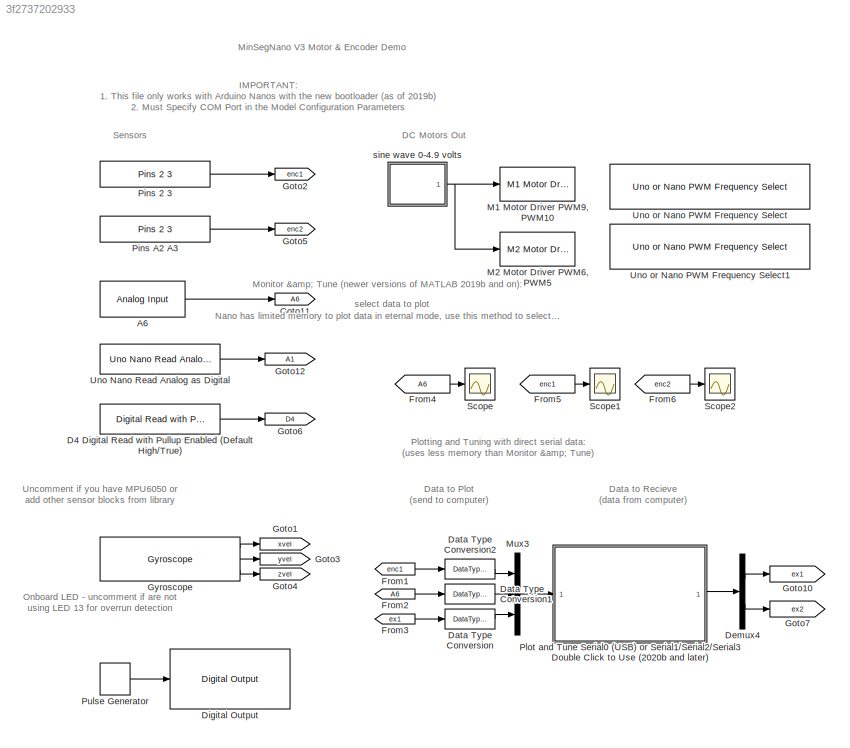
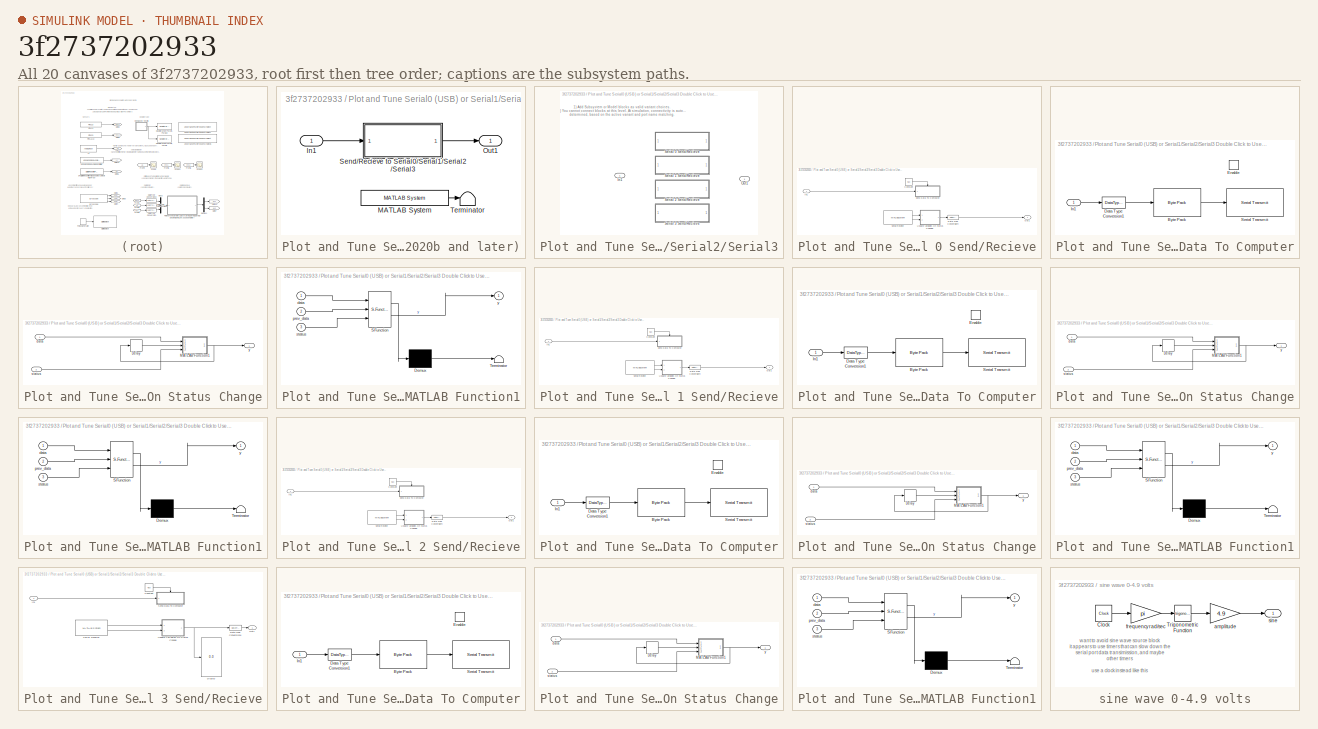
[diagram: thumbnail index - all 20 canvases of the model, root first then tree order]
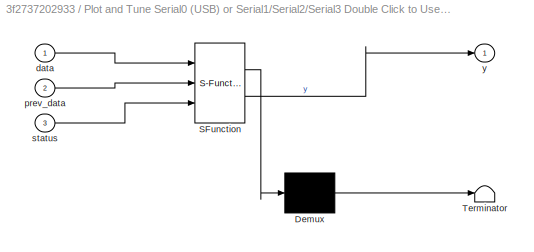
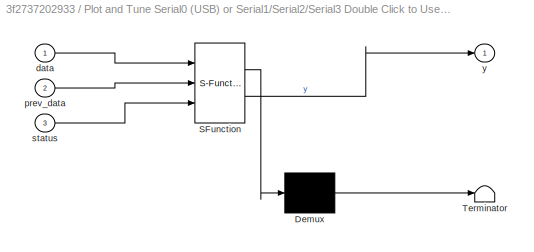
MODEL slx_3f2737202933
KIND model
CONFIG AbsTol = auto
CONFIG EnableMultiTasking = on
CONFIG FixedStep = auto
CONFIG MaxStep = auto
CONFIG MinStep = auto
CONFIG RelTol = 1e-3
CONFIG SampleTimeConstraint = Unconstrained
CONFIG SolverName = ode45
CONFIG StartTime = 0.0
CONFIG StopTime = 10.0
BLOCK [Reference] A6  REF=arduinolib/Analog Input
  Ports = [0, 1]
  SourceBlock = arduinolib/Analog Input
  SourceProductBaseCode = ARDUINO
  SourceType = Arduino Analog Input
BLOCK [Reference] D4 Digital Read with Pullup Enabled (Default High//True)  REF=RASPlib/Digital Read with Pullup Enabled
  Ports = [0, 1]
  SourceBlock = RASPlib/Digital Read with Pullup Enabled
  SourceProductName = Rensselaer Arduino Support Package
  SourceType = soDigitalPullupRead
BLOCK [DataTypeConversion] Data Type Conversion
  Commented = on
  OutDataTypeStr = single
  RndMeth = Floor
  SaturateOnIntegerOverflow = off
BLOCK [DataTypeConversion] Data Type Conversion1
  Commented = on
  OutDataTypeStr = single
  RndMeth = Floor
  SaturateOnIntegerOverflow = off
BLOCK [DataTypeConversion] Data Type Conversion2
  Commented = on
  OutDataTypeStr = single
  RndMeth = Floor
  SaturateOnIntegerOverflow = off
BLOCK [Demux] Demux4
  Commented = on
  Outputs = 2
  Ports = [1, 2]
BLOCK [Reference] Digital Output  REF=arduinolib/Digital Output
  Commented = on
  Ports = [1]
  SourceBlock = arduinolib/Digital Output
  SourceProductBaseCode = ARDUINO
  SourceType = Arduino Digital Output
BLOCK [From] From1
  Commented = on
  GotoTag = enc1
BLOCK [From] From2
  Commented = on
  GotoTag = A6
  IconDisplay = Signal name
BLOCK [From] From3
  Commented = on
  GotoTag = ex1
  IconDisplay = Signal name
BLOCK [From] From4
  GotoTag = A6
BLOCK [From] From5
  Commented = on
  GotoTag = enc1
BLOCK [From] From6
  Commented = on
  GotoTag = enc2
BLOCK [Goto] Goto1
  Commented = on
  GotoTag = xvel
BLOCK [Goto] Goto10
  Commented = on
  GotoTag = ex1
BLOCK [Goto] Goto11
  GotoTag = A6
BLOCK [Goto] Goto12
  GotoTag = A1
BLOCK [Goto] Goto2
  GotoTag = enc1
BLOCK [Goto] Goto3
  Commented = on
  GotoTag = yvel
BLOCK [Goto] Goto4
  Commented = on
  GotoTag = zvel
BLOCK [Goto] Goto5
  GotoTag = enc2
BLOCK [Goto] Goto6
  GotoTag = D4
BLOCK [Goto] Goto7
  Commented = on
  GotoTag = ex2
BLOCK [Reference] Gyroscope  REF=RASPlib/Gyroscope
  Commented = on
  Ports = [0, 3]
  SourceBlock = RASPlib/Gyroscope
  SourceProductName = Rensselaer Arduino Support Package
  SourceType = soMPU6050Gyro
BLOCK [Reference] M1 Motor Driver PWM9, PWM10  REF=MinSegLibrary_MinSegNano/M1 Motor Driver
PWM9, PWM10
  Ports = [1]
  SourceBlock = MinSegLibrary_MinSegNano/M1 Motor Driver\nPWM9, PWM10
  SourceProductName = Rensselaer Arduino Support Package
BLOCK [Reference] M2 Motor Driver PWM6, PWM5  REF=MinSegLibrary_MinSegNano/M2 Motor Driver
PWM6, PWM5
  Commented = on
  Ports = [1]
  SourceBlock = MinSegLibrary_MinSegNano/M2 Motor Driver\nPWM6, PWM5
  SourceProductName = Rensselaer Arduino Support Package
BLOCK [Mux] Mux3
  Commented = on
  DisplayOption = bar
  Inputs = 3
  Ports = [3, 1]
BLOCK [Reference] Pins 2 3  REF=MinSegLibrary_MinSegNano/Pins 2 3
  Ports = [0, 1]
  SourceBlock = MinSegLibrary_MinSegNano/Pins 2 3
  SourceProductName = Rensselaer Arduino Support Package
  SourceType = Encoder_arduino_uno_nano
BLOCK [Reference] Pins A2 A3  REF=MinSegLibrary_MinSegNano/Pins 2 3
  Ports = [0, 1]
  SourceBlock = MinSegLibrary_MinSegNano/Pins 2 3
  SourceProductName = Rensselaer Arduino Support Package
  SourceType = Encoder_arduino_uno_nano
BLOCK [SubSystem] Plot and Tune Serial0 (USB) or Serial1//Serial2//Serial3 Double Click to Use (2020b and later)
  Commented = on
  Ports = [1, 1]
  RequestExecContextInheritance = off
BLOCK [Inport] Plot and Tune Serial0 (USB) or Serial1//Serial2//Serial3 Double Click to Use (2020b and later)/In1
BLOCK [Reference] Plot and Tune Serial0 (USB) or Serial1//Serial2//Serial3 Double Click to Use (2020b and later)/MATLAB System  REF=RASPlib/Double Click to
Plot Serial Data/MATLAB System
  Ports = [0, 1]
  SourceBlock = RASPlib/Double Click to\nPlot Serial Data/MATLAB System
  SourceProductName = Rensselaer Arduino Support Package
  SourceType = soSendDataStartString
BLOCK [Outport] Plot and Tune Serial0 (USB) or Serial1//Serial2//Serial3 Double Click to Use (2020b and later)/Out1
BLOCK [SubSystem] Plot and Tune Serial0 (USB) or Serial1//Serial2//Serial3 Double Click to Use (2020b and later)/Send//Recieve to Serial0//Serial1//Serial2//Serial3
  Ports = [1, 1]
  RequestExecContextInheritance = off
  Variant = on
BLOCK [Inport] Plot and Tune Serial0 (USB) or Serial1//Serial2//Serial3 Double Click to Use (2020b and later)/Send//Recieve to Serial0//Serial1//Serial2//Serial3/In1
BLOCK [Outport] Plot and Tune Serial0 (USB) or Serial1//Serial2//Serial3 Double Click to Use (2020b and later)/Send//Recieve to Serial0//Serial1//Serial2//Serial3/Out1
BLOCK [SubSystem] Plot and Tune Serial0 (USB) or Serial1//Serial2//Serial3 Double Click to Use (2020b and later)/Send//Recieve to Serial0//Serial1//Serial2//Serial3/Serial 0 Send//Recieve
  Ports = [1, 1]
  RequestExecContextInheritance = off
  VariantControl = Ard_Serial==0
BLOCK [Constant] Plot and Tune Serial0 (USB) or Serial1//Serial2//Serial3 Double Click to Use (2020b and later)/Send//Recieve to Serial0//Serial1//Serial2//Serial3/Serial 0 Send//Recieve/Constant
  Value = Ncx
BLOCK [DataTypeConversion] Plot and Tune Serial0 (USB) or Serial1//Serial2//Serial3 Double Click to Use (2020b and later)/Send//Recieve to Serial0//Serial1//Serial2//Serial3/Serial 0 Send//Recieve/Data Type Conversion4
  OutDataTypeStr = single
  RndMeth = Floor
  SaturateOnIntegerOverflow = off
BLOCK [Inport] Plot and Tune Serial0 (USB) or Serial1//Serial2//Serial3 Double Click to Use (2020b and later)/Send//Recieve to Serial0//Serial1//Serial2//Serial3/Serial 0 Send//Recieve/In1
BLOCK [Outport] Plot and Tune Serial0 (USB) or Serial1//Serial2//Serial3 Double Click to Use (2020b and later)/Send//Recieve to Serial0//Serial1//Serial2//Serial3/Serial 0 Send//Recieve/Out1
BLOCK [SubSystem] Plot and Tune Serial0 (USB) or Serial1//Serial2//Serial3 Double Click to Use (2020b and later)/Send//Recieve to Serial0//Serial1//Serial2//Serial3/Serial 0 Send//Recieve/Send Data To Computer
  Ports = [1, 0, 1]
  RequestExecContextInheritance = off
  TreatAsAtomicUnit = on
BLOCK [Reference] Plot and Tune Serial0 (USB) or Serial1//Serial2//Serial3 Double Click to Use (2020b and later)/Send//Recieve to Serial0//Serial1//Serial2//Serial3/Serial 0 Send//Recieve/Send Data To Computer/Byte Pack  REF=svdutilitieslib/Byte Pack
  Ports = [1, 1]
  SourceBlock = svdutilitieslib/Byte Pack
  SourceProductBaseCode = ANDROID,ARDUINO,ML_ARDUINO,ECCORTEXA,ECCORTEXR,SC_BEAGLEBONE_BLUE,EC_FREEDOM_BOARD,EC_FRDM_K64F,INTEL_BLOCKSET,JETSONCPU,MICROBIT,NUCLEO,NVIDIA,PX4AUTOPILOTS,RASPPIIO,STMICRODIS,TIC2000,XILINX_BLOCKSET  <repeated x4 — deduplicated; at blocks: Byte Pack>
  SourceType = Byte pack
BLOCK [DataTypeConversion] Plot and Tune Serial0 (USB) or Serial1//Serial2//Serial3 Double Click to Use (2020b and later)/Send//Recieve to Serial0//Serial1//Serial2//Serial3/Serial 0 Send//Recieve/Send Data To Computer/Data Type Conversion1
  OutDataTypeStr = single
  RndMeth = Floor
  SaturateOnIntegerOverflow = off
BLOCK [EnablePort] Plot and Tune Serial0 (USB) or Serial1//Serial2//Serial3 Double Click to Use (2020b and later)/Send//Recieve to Serial0//Serial1//Serial2//Serial3/Serial 0 Send//Recieve/Send Data To Computer/Enable
  Ports = []
BLOCK [Inport] Plot and Tune Serial0 (USB) or Serial1//Serial2//Serial3 Double Click to Use (2020b and later)/Send//Recieve to Serial0//Serial1//Serial2//Serial3/Serial 0 Send//Recieve/Send Data To Computer/In1
BLOCK [Reference] Plot and Tune Serial0 (USB) or Serial1//Serial2//Serial3 Double Click to Use (2020b and later)/Send//Recieve to Serial0//Serial1//Serial2//Serial3/Serial 0 Send//Recieve/Send Data To Computer/Serial Transmit  REF=arduinolib/Serial Transmit
  Ports = [1]
  SourceBlock = arduinolib/Serial Transmit
  SourceProductBaseCode = ARDUINO
  SourceType = Arduino Serial Transmit
BLOCK [MATLABSystem] Plot and Tune Serial0 (USB) or Serial1//Serial2//Serial3 Double Click to Use (2020b and later)/Send//Recieve to Serial0//Serial1//Serial2//Serial3/Serial 0 Send//Recieve/Serial Receive
  DataType = double
  Datalength = Datalength
  InitFcn = %codertarget.arduinobase.blocks.arduinoBlockInitFcnCallback(gcbh);\n%codertarget.arduinobase.blocks.registerSerialBlock(gcbh);
  MaskDisplay = disp('codertarget.arduinobase.internal.arduino_SerialRead');\nport_label('output',1,'data');\nport_label('output',2,'status');
  MaskType = Arduino Serial Receive
  Ports = [0, 2]
  Protocol = 0
  SampleTime = SampleTime
  System = codertarget.arduinobase.internal.arduino_SerialRead
  isARMArch = off
  portNumber = portNumber
BLOCK [SubSystem] Plot and Tune Serial0 (USB) or Serial1//Serial2//Serial3 Double Click to Use (2020b and later)/Send//Recieve to Serial0//Serial1//Serial2//Serial3/Serial 0 Send//Recieve/Update  Variables On Status Change
  Ports = [2, 1]
  RequestExecContextInheritance = off
BLOCK [Delay] Plot and Tune Serial0 (USB) or Serial1//Serial2//Serial3 Double Click to Use (2020b and later)/Send//Recieve to Serial0//Serial1//Serial2//Serial3/Serial 0 Send//Recieve/Update  Variables On Status Change/Delay
  DelayLength = 1
  InitialCondition = Data0
  InputPortMap = u0
  Ports = [1, 1]
BLOCK [SubSystem] Plot and Tune Serial0 (USB) or Serial1//Serial2//Serial3 Double Click to Use (2020b and later)/Send//Recieve to Serial0//Serial1//Serial2//Serial3/Serial 0 Send//Recieve/Update  Variables On Status Change/MATLAB Function1
  ErrorFcn = Stateflow.Translate.translate
  PermitHierarchicalResolution = ExplicitOnly
  Ports = [3, 1]
  RequestExecContextInheritance = off
  SFBlockType = MATLAB Function
  TreatAsAtomicUnit = on
BLOCK [Demux] Plot and Tune Serial0 (USB) or Serial1//Serial2//Serial3 Double Click to Use (2020b and later)/Send//Recieve to Serial0//Serial1//Serial2//Serial3/Serial 0 Send//Recieve/Update  Variables On Status Change/MATLAB Function1/ Demux 
  Outputs = 1
  Ports = [1, 1]
BLOCK [S-Function] Plot and Tune Serial0 (USB) or Serial1//Serial2//Serial3 Double Click to Use (2020b and later)/Send//Recieve to Serial0//Serial1//Serial2//Serial3/Serial 0 Send//Recieve/Update  Variables On Status Change/MATLAB Function1/ SFunction 
  EnableBusSupport = on
  FunctionName = sf_sfun
  PortCounts = [3 2]
  Ports = [3, 2]
  SFcnIsStateOwnerBlock = off
  SFunctionDeploymentMode = off
  Tag = Stateflow S-Function 7
BLOCK [Terminator] Plot and Tune Serial0 (USB) or Serial1//Serial2//Serial3 Double Click to Use (2020b and later)/Send//Recieve to Serial0//Serial1//Serial2//Serial3/Serial 0 Send//Recieve/Update  Variables On Status Change/MATLAB Function1/ Terminator 
BLOCK [Inport] Plot and Tune Serial0 (USB) or Serial1//Serial2//Serial3 Double Click to Use (2020b and later)/Send//Recieve to Serial0//Serial1//Serial2//Serial3/Serial 0 Send//Recieve/Update  Variables On Status Change/MATLAB Function1/data
BLOCK [Inport] Plot and Tune Serial0 (USB) or Serial1//Serial2//Serial3 Double Click to Use (2020b and later)/Send//Recieve to Serial0//Serial1//Serial2//Serial3/Serial 0 Send//Recieve/Update  Variables On Status Change/MATLAB Function1/prev_data
  Port = 2
BLOCK [Inport] Plot and Tune Serial0 (USB) or Serial1//Serial2//Serial3 Double Click to Use (2020b and later)/Send//Recieve to Serial0//Serial1//Serial2//Serial3/Serial 0 Send//Recieve/Update  Variables On Status Change/MATLAB Function1/status
  Port = 3
BLOCK [Outport] Plot and Tune Serial0 (USB) or Serial1//Serial2//Serial3 Double Click to Use (2020b and later)/Send//Recieve to Serial0//Serial1//Serial2//Serial3/Serial 0 Send//Recieve/Update  Variables On Status Change/MATLAB Function1/y
BLOCK [Inport] Plot and Tune Serial0 (USB) or Serial1//Serial2//Serial3 Double Click to Use (2020b and later)/Send//Recieve to Serial0//Serial1//Serial2//Serial3/Serial 0 Send//Recieve/Update  Variables On Status Change/data
BLOCK [Inport] Plot and Tune Serial0 (USB) or Serial1//Serial2//Serial3 Double Click to Use (2020b and later)/Send//Recieve to Serial0//Serial1//Serial2//Serial3/Serial 0 Send//Recieve/Update  Variables On Status Change/status
  Port = 2
BLOCK [Outport] Plot and Tune Serial0 (USB) or Serial1//Serial2//Serial3 Double Click to Use (2020b and later)/Send//Recieve to Serial0//Serial1//Serial2//Serial3/Serial 0 Send//Recieve/Update  Variables On Status Change/y
BLOCK [SubSystem] Plot and Tune Serial0 (USB) or Serial1//Serial2//Serial3 Double Click to Use (2020b and later)/Send//Recieve to Serial0//Serial1//Serial2//Serial3/Serial 1 Send//Recieve
  Ports = [1, 1]
  RequestExecContextInheritance = off
  VariantControl = Ard_Serial==1
BLOCK [Constant] Plot and Tune Serial0 (USB) or Serial1//Serial2//Serial3 Double Click to Use (2020b and later)/Send//Recieve to Serial0//Serial1//Serial2//Serial3/Serial 1 Send//Recieve/Constant
  Value = Ncx
BLOCK [DataTypeConversion] Plot and Tune Serial0 (USB) or Serial1//Serial2//Serial3 Double Click to Use (2020b and later)/Send//Recieve to Serial0//Serial1//Serial2//Serial3/Serial 1 Send//Recieve/Data Type Conversion4
  OutDataTypeStr = single
  RndMeth = Floor
  SaturateOnIntegerOverflow = off
BLOCK [Inport] Plot and Tune Serial0 (USB) or Serial1//Serial2//Serial3 Double Click to Use (2020b and later)/Send//Recieve to Serial0//Serial1//Serial2//Serial3/Serial 1 Send//Recieve/In1
BLOCK [Outport] Plot and Tune Serial0 (USB) or Serial1//Serial2//Serial3 Double Click to Use (2020b and later)/Send//Recieve to Serial0//Serial1//Serial2//Serial3/Serial 1 Send//Recieve/Out1
BLOCK [SubSystem] Plot and Tune Serial0 (USB) or Serial1//Serial2//Serial3 Double Click to Use (2020b and later)/Send//Recieve to Serial0//Serial1//Serial2//Serial3/Serial 1 Send//Recieve/Send Data To Computer
  Ports = [1, 0, 1]
  RequestExecContextInheritance = off
  TreatAsAtomicUnit = on
BLOCK [Reference] Plot and Tune Serial0 (USB) or Serial1//Serial2//Serial3 Double Click to Use (2020b and later)/Send//Recieve to Serial0//Serial1//Serial2//Serial3/Serial 1 Send//Recieve/Send Data To Computer/Byte Pack  REF=svdutilitieslib/Byte Pack
  Ports = [1, 1]
  SourceBlock = svdutilitieslib/Byte Pack
  SourceType = Byte pack
BLOCK [DataTypeConversion] Plot and Tune Serial0 (USB) or Serial1//Serial2//Serial3 Double Click to Use (2020b and later)/Send//Recieve to Serial0//Serial1//Serial2//Serial3/Serial 1 Send//Recieve/Send Data To Computer/Data Type Conversion1
  OutDataTypeStr = single
  RndMeth = Floor
  SaturateOnIntegerOverflow = off
BLOCK [EnablePort] Plot and Tune Serial0 (USB) or Serial1//Serial2//Serial3 Double Click to Use (2020b and later)/Send//Recieve to Serial0//Serial1//Serial2//Serial3/Serial 1 Send//Recieve/Send Data To Computer/Enable
  Ports = []
BLOCK [Inport] Plot and Tune Serial0 (USB) or Serial1//Serial2//Serial3 Double Click to Use (2020b and later)/Send//Recieve to Serial0//Serial1//Serial2//Serial3/Serial 1 Send//Recieve/Send Data To Computer/In1
BLOCK [Reference] Plot and Tune Serial0 (USB) or Serial1//Serial2//Serial3 Double Click to Use (2020b and later)/Send//Recieve to Serial0//Serial1//Serial2//Serial3/Serial 1 Send//Recieve/Send Data To Computer/Serial Transmit  REF=arduinolib/Serial Transmit
  Ports = [1]
  SourceBlock = arduinolib/Serial Transmit
  SourceProductBaseCode = ARDUINO
  SourceType = Arduino Serial Transmit
BLOCK [MATLABSystem] Plot and Tune Serial0 (USB) or Serial1//Serial2//Serial3 Double Click to Use (2020b and later)/Send//Recieve to Serial0//Serial1//Serial2//Serial3/Serial 1 Send//Recieve/Serial Receive
  DataType = double
  Datalength = Datalength
  InitFcn = %codertarget.arduinobase.blocks.arduinoBlockInitFcnCallback(gcbh);\n%codertarget.arduinobase.blocks.registerSerialBlock(gcbh);
  MaskDisplay = disp('codertarget.arduinobase.internal.arduino_SerialRead');\nport_label('output',1,'data');\nport_label('output',2,'status');
  MaskType = Arduino Serial Receive
  Ports = [0, 2]
  Protocol = 0
  SampleTime = SampleTime
  System = codertarget.arduinobase.internal.arduino_SerialRead
  isARMArch = off
  portNumber = portNumber
BLOCK [SubSystem] Plot and Tune Serial0 (USB) or Serial1//Serial2//Serial3 Double Click to Use (2020b and later)/Send//Recieve to Serial0//Serial1//Serial2//Serial3/Serial 1 Send//Recieve/Update  Variables On Status Change
  Ports = [2, 1]
  RequestExecContextInheritance = off
BLOCK [Delay] Plot and Tune Serial0 (USB) or Serial1//Serial2//Serial3 Double Click to Use (2020b and later)/Send//Recieve to Serial0//Serial1//Serial2//Serial3/Serial 1 Send//Recieve/Update  Variables On Status Change/Delay
  DelayLength = 1
  InitialCondition = Data0
  InputPortMap = u0
  Ports = [1, 1]
  SampleTime = TS
BLOCK [SubSystem] Plot and Tune Serial0 (USB) or Serial1//Serial2//Serial3 Double Click to Use (2020b and later)/Send//Recieve to Serial0//Serial1//Serial2//Serial3/Serial 1 Send//Recieve/Update  Variables On Status Change/MATLAB Function1
  ErrorFcn = Stateflow.Translate.translate
  PermitHierarchicalResolution = ExplicitOnly
  Ports = [3, 1]
  RequestExecContextInheritance = off
  SFBlockType = MATLAB Function
  TreatAsAtomicUnit = on
BLOCK [Demux] Plot and Tune Serial0 (USB) or Serial1//Serial2//Serial3 Double Click to Use (2020b and later)/Send//Recieve to Serial0//Serial1//Serial2//Serial3/Serial 1 Send//Recieve/Update  Variables On Status Change/MATLAB Function1/ Demux 
  Outputs = 1
  Ports = [1, 1]
BLOCK [S-Function] Plot and Tune Serial0 (USB) or Serial1//Serial2//Serial3 Double Click to Use (2020b and later)/Send//Recieve to Serial0//Serial1//Serial2//Serial3/Serial 1 Send//Recieve/Update  Variables On Status Change/MATLAB Function1/ SFunction 
  EnableBusSupport = on
  FunctionName = sf_sfun
  PortCounts = [3 2]
  Ports = [3, 2]
  SFcnIsStateOwnerBlock = off
  SFunctionDeploymentMode = off
  Tag = Stateflow S-Function 5
BLOCK [Terminator] Plot and Tune Serial0 (USB) or Serial1//Serial2//Serial3 Double Click to Use (2020b and later)/Send//Recieve to Serial0//Serial1//Serial2//Serial3/Serial 1 Send//Recieve/Update  Variables On Status Change/MATLAB Function1/ Terminator 
BLOCK [Inport] Plot and Tune Serial0 (USB) or Serial1//Serial2//Serial3 Double Click to Use (2020b and later)/Send//Recieve to Serial0//Serial1//Serial2//Serial3/Serial 1 Send//Recieve/Update  Variables On Status Change/MATLAB Function1/data
BLOCK [Inport] Plot and Tune Serial0 (USB) or Serial1//Serial2//Serial3 Double Click to Use (2020b and later)/Send//Recieve to Serial0//Serial1//Serial2//Serial3/Serial 1 Send//Recieve/Update  Variables On Status Change/MATLAB Function1/prev_data
  Port = 2
BLOCK [Inport] Plot and Tune Serial0 (USB) or Serial1//Serial2//Serial3 Double Click to Use (2020b and later)/Send//Recieve to Serial0//Serial1//Serial2//Serial3/Serial 1 Send//Recieve/Update  Variables On Status Change/MATLAB Function1/status
  Port = 3
BLOCK [Outport] Plot and Tune Serial0 (USB) or Serial1//Serial2//Serial3 Double Click to Use (2020b and later)/Send//Recieve to Serial0//Serial1//Serial2//Serial3/Serial 1 Send//Recieve/Update  Variables On Status Change/MATLAB Function1/y
BLOCK [Inport] Plot and Tune Serial0 (USB) or Serial1//Serial2//Serial3 Double Click to Use (2020b and later)/Send//Recieve to Serial0//Serial1//Serial2//Serial3/Serial 1 Send//Recieve/Update  Variables On Status Change/data
BLOCK [Inport] Plot and Tune Serial0 (USB) or Serial1//Serial2//Serial3 Double Click to Use (2020b and later)/Send//Recieve to Serial0//Serial1//Serial2//Serial3/Serial 1 Send//Recieve/Update  Variables On Status Change/status
  Port = 2
BLOCK [Outport] Plot and Tune Serial0 (USB) or Serial1//Serial2//Serial3 Double Click to Use (2020b and later)/Send//Recieve to Serial0//Serial1//Serial2//Serial3/Serial 1 Send//Recieve/Update  Variables On Status Change/y
BLOCK [SubSystem] Plot and Tune Serial0 (USB) or Serial1//Serial2//Serial3 Double Click to Use (2020b and later)/Send//Recieve to Serial0//Serial1//Serial2//Serial3/Serial 2 Send//Recieve
  Ports = [1, 1]
  RequestExecContextInheritance = off
  VariantControl = Ard_Serial==2
BLOCK [Constant] Plot and Tune Serial0 (USB) or Serial1//Serial2//Serial3 Double Click to Use (2020b and later)/Send//Recieve to Serial0//Serial1//Serial2//Serial3/Serial 2 Send//Recieve/Constant
  Value = Ncx
BLOCK [DataTypeConversion] Plot and Tune Serial0 (USB) or Serial1//Serial2//Serial3 Double Click to Use (2020b and later)/Send//Recieve to Serial0//Serial1//Serial2//Serial3/Serial 2 Send//Recieve/Data Type Conversion4
  OutDataTypeStr = single
  RndMeth = Floor
  SaturateOnIntegerOverflow = off
BLOCK [Inport] Plot and Tune Serial0 (USB) or Serial1//Serial2//Serial3 Double Click to Use (2020b and later)/Send//Recieve to Serial0//Serial1//Serial2//Serial3/Serial 2 Send//Recieve/In1
BLOCK [Outport] Plot and Tune Serial0 (USB) or Serial1//Serial2//Serial3 Double Click to Use (2020b and later)/Send//Recieve to Serial0//Serial1//Serial2//Serial3/Serial 2 Send//Recieve/Out1
BLOCK [SubSystem] Plot and Tune Serial0 (USB) or Serial1//Serial2//Serial3 Double Click to Use (2020b and later)/Send//Recieve to Serial0//Serial1//Serial2//Serial3/Serial 2 Send//Recieve/Send Data To Computer
  Ports = [1, 0, 1]
  RequestExecContextInheritance = off
  TreatAsAtomicUnit = on
BLOCK [Reference] Plot and Tune Serial0 (USB) or Serial1//Serial2//Serial3 Double Click to Use (2020b and later)/Send//Recieve to Serial0//Serial1//Serial2//Serial3/Serial 2 Send//Recieve/Send Data To Computer/Byte Pack  REF=svdutilitieslib/Byte Pack
  Ports = [1, 1]
  SourceBlock = svdutilitieslib/Byte Pack
  SourceType = Byte pack
BLOCK [DataTypeConversion] Plot and Tune Serial0 (USB) or Serial1//Serial2//Serial3 Double Click to Use (2020b and later)/Send//Recieve to Serial0//Serial1//Serial2//Serial3/Serial 2 Send//Recieve/Send Data To Computer/Data Type Conversion1
  OutDataTypeStr = single
  RndMeth = Floor
  SaturateOnIntegerOverflow = off
BLOCK [EnablePort] Plot and Tune Serial0 (USB) or Serial1//Serial2//Serial3 Double Click to Use (2020b and later)/Send//Recieve to Serial0//Serial1//Serial2//Serial3/Serial 2 Send//Recieve/Send Data To Computer/Enable
  Ports = []
BLOCK [Inport] Plot and Tune Serial0 (USB) or Serial1//Serial2//Serial3 Double Click to Use (2020b and later)/Send//Recieve to Serial0//Serial1//Serial2//Serial3/Serial 2 Send//Recieve/Send Data To Computer/In1
BLOCK [Reference] Plot and Tune Serial0 (USB) or Serial1//Serial2//Serial3 Double Click to Use (2020b and later)/Send//Recieve to Serial0//Serial1//Serial2//Serial3/Serial 2 Send//Recieve/Send Data To Computer/Serial Transmit  REF=arduinolib/Serial Transmit
  Ports = [1]
  SourceBlock = arduinolib/Serial Transmit
  SourceProductBaseCode = ARDUINO
  SourceType = Arduino Serial Transmit
BLOCK [MATLABSystem] Plot and Tune Serial0 (USB) or Serial1//Serial2//Serial3 Double Click to Use (2020b and later)/Send//Recieve to Serial0//Serial1//Serial2//Serial3/Serial 2 Send//Recieve/Serial Receive
  DataType = double
  Datalength = Datalength
  InitFcn = %codertarget.arduinobase.blocks.arduinoBlockInitFcnCallback(gcbh);\n%codertarget.arduinobase.blocks.registerSerialBlock(gcbh);
  MaskDisplay = disp('codertarget.arduinobase.internal.arduino_SerialRead');\nport_label('output',1,'data');\nport_label('output',2,'status');
  MaskType = Arduino Serial Receive
  Ports = [0, 2]
  Protocol = 0
  SampleTime = SampleTime
  System = codertarget.arduinobase.internal.arduino_SerialRead
  isARMArch = off
  portNumber = portNumber
BLOCK [SubSystem] Plot and Tune Serial0 (USB) or Serial1//Serial2//Serial3 Double Click to Use (2020b and later)/Send//Recieve to Serial0//Serial1//Serial2//Serial3/Serial 2 Send//Recieve/Update  Variables On Status Change
  Ports = [2, 1]
  RequestExecContextInheritance = off
BLOCK [Delay] Plot and Tune Serial0 (USB) or Serial1//Serial2//Serial3 Double Click to Use (2020b and later)/Send//Recieve to Serial0//Serial1//Serial2//Serial3/Serial 2 Send//Recieve/Update  Variables On Status Change/Delay
  DelayLength = 1
  InitialCondition = Data0
  InputPortMap = u0
  Ports = [1, 1]
  SampleTime = TS
BLOCK [SubSystem] Plot and Tune Serial0 (USB) or Serial1//Serial2//Serial3 Double Click to Use (2020b and later)/Send//Recieve to Serial0//Serial1//Serial2//Serial3/Serial 2 Send//Recieve/Update  Variables On Status Change/MATLAB Function1
  ErrorFcn = Stateflow.Translate.translate
  PermitHierarchicalResolution = ExplicitOnly
  Ports = [3, 1]
  RequestExecContextInheritance = off
  SFBlockType = MATLAB Function
  TreatAsAtomicUnit = on
BLOCK [Demux] Plot and Tune Serial0 (USB) or Serial1//Serial2//Serial3 Double Click to Use (2020b and later)/Send//Recieve to Serial0//Serial1//Serial2//Serial3/Serial 2 Send//Recieve/Update  Variables On Status Change/MATLAB Function1/ Demux 
  Outputs = 1
  Ports = [1, 1]
BLOCK [S-Function] Plot and Tune Serial0 (USB) or Serial1//Serial2//Serial3 Double Click to Use (2020b and later)/Send//Recieve to Serial0//Serial1//Serial2//Serial3/Serial 2 Send//Recieve/Update  Variables On Status Change/MATLAB Function1/ SFunction 
  EnableBusSupport = on
  FunctionName = sf_sfun
  PortCounts = [3 2]
  Ports = [3, 2]
  SFcnIsStateOwnerBlock = off
  SFunctionDeploymentMode = off
  Tag = Stateflow S-Function 4
BLOCK [Terminator] Plot and Tune Serial0 (USB) or Serial1//Serial2//Serial3 Double Click to Use (2020b and later)/Send//Recieve to Serial0//Serial1//Serial2//Serial3/Serial 2 Send//Recieve/Update  Variables On Status Change/MATLAB Function1/ Terminator 
BLOCK [Inport] Plot and Tune Serial0 (USB) or Serial1//Serial2//Serial3 Double Click to Use (2020b and later)/Send//Recieve to Serial0//Serial1//Serial2//Serial3/Serial 2 Send//Recieve/Update  Variables On Status Change/MATLAB Function1/data
BLOCK [Inport] Plot and Tune Serial0 (USB) or Serial1//Serial2//Serial3 Double Click to Use (2020b and later)/Send//Recieve to Serial0//Serial1//Serial2//Serial3/Serial 2 Send//Recieve/Update  Variables On Status Change/MATLAB Function1/prev_data
  Port = 2
BLOCK [Inport] Plot and Tune Serial0 (USB) or Serial1//Serial2//Serial3 Double Click to Use (2020b and later)/Send//Recieve to Serial0//Serial1//Serial2//Serial3/Serial 2 Send//Recieve/Update  Variables On Status Change/MATLAB Function1/status
  Port = 3
BLOCK [Outport] Plot and Tune Serial0 (USB) or Serial1//Serial2//Serial3 Double Click to Use (2020b and later)/Send//Recieve to Serial0//Serial1//Serial2//Serial3/Serial 2 Send//Recieve/Update  Variables On Status Change/MATLAB Function1/y
BLOCK [Inport] Plot and Tune Serial0 (USB) or Serial1//Serial2//Serial3 Double Click to Use (2020b and later)/Send//Recieve to Serial0//Serial1//Serial2//Serial3/Serial 2 Send//Recieve/Update  Variables On Status Change/data
BLOCK [Inport] Plot and Tune Serial0 (USB) or Serial1//Serial2//Serial3 Double Click to Use (2020b and later)/Send//Recieve to Serial0//Serial1//Serial2//Serial3/Serial 2 Send//Recieve/Update  Variables On Status Change/status
  Port = 2
BLOCK [Outport] Plot and Tune Serial0 (USB) or Serial1//Serial2//Serial3 Double Click to Use (2020b and later)/Send//Recieve to Serial0//Serial1//Serial2//Serial3/Serial 2 Send//Recieve/Update  Variables On Status Change/y
BLOCK [SubSystem] Plot and Tune Serial0 (USB) or Serial1//Serial2//Serial3 Double Click to Use (2020b and later)/Send//Recieve to Serial0//Serial1//Serial2//Serial3/Serial 3 Send//Recieve
  Ports = [1, 1]
  RequestExecContextInheritance = off
  VariantControl = Ard_Serial==3
BLOCK [Constant] Plot and Tune Serial0 (USB) or Serial1//Serial2//Serial3 Double Click to Use (2020b and later)/Send//Recieve to Serial0//Serial1//Serial2//Serial3/Serial 3 Send//Recieve/Constant
  Value = Ncx
BLOCK [DataTypeConversion] Plot and Tune Serial0 (USB) or Serial1//Serial2//Serial3 Double Click to Use (2020b and later)/Send//Recieve to Serial0//Serial1//Serial2//Serial3/Serial 3 Send//Recieve/Data Type Conversion4
  OutDataTypeStr = single
  RndMeth = Floor
  SaturateOnIntegerOverflow = off
BLOCK [Display] Plot and Tune Serial0 (USB) or Serial1//Serial2//Serial3 Double Click to Use (2020b and later)/Send//Recieve to Serial0//Serial1//Serial2//Serial3/Serial 3 Send//Recieve/Display
  Commented = on
  Decimation = 1
  Ports = [1]
BLOCK [Inport] Plot and Tune Serial0 (USB) or Serial1//Serial2//Serial3 Double Click to Use (2020b and later)/Send//Recieve to Serial0//Serial1//Serial2//Serial3/Serial 3 Send//Recieve/In1
BLOCK [Outport] Plot and Tune Serial0 (USB) or Serial1//Serial2//Serial3 Double Click to Use (2020b and later)/Send//Recieve to Serial0//Serial1//Serial2//Serial3/Serial 3 Send//Recieve/Out1
BLOCK [SubSystem] Plot and Tune Serial0 (USB) or Serial1//Serial2//Serial3 Double Click to Use (2020b and later)/Send//Recieve to Serial0//Serial1//Serial2//Serial3/Serial 3 Send//Recieve/Send Data To Computer
  Ports = [1, 0, 1]
  RequestExecContextInheritance = off
  TreatAsAtomicUnit = on
BLOCK [Reference] Plot and Tune Serial0 (USB) or Serial1//Serial2//Serial3 Double Click to Use (2020b and later)/Send//Recieve to Serial0//Serial1//Serial2//Serial3/Serial 3 Send//Recieve/Send Data To Computer/Byte Pack  REF=svdutilitieslib/Byte Pack
  Ports = [1, 1]
  SourceBlock = svdutilitieslib/Byte Pack
  SourceType = Byte pack
BLOCK [DataTypeConversion] Plot and Tune Serial0 (USB) or Serial1//Serial2//Serial3 Double Click to Use (2020b and later)/Send//Recieve to Serial0//Serial1//Serial2//Serial3/Serial 3 Send//Recieve/Send Data To Computer/Data Type Conversion1
  OutDataTypeStr = single
  RndMeth = Floor
  SaturateOnIntegerOverflow = off
BLOCK [EnablePort] Plot and Tune Serial0 (USB) or Serial1//Serial2//Serial3 Double Click to Use (2020b and later)/Send//Recieve to Serial0//Serial1//Serial2//Serial3/Serial 3 Send//Recieve/Send Data To Computer/Enable
  Ports = []
BLOCK [Inport] Plot and Tune Serial0 (USB) or Serial1//Serial2//Serial3 Double Click to Use (2020b and later)/Send//Recieve to Serial0//Serial1//Serial2//Serial3/Serial 3 Send//Recieve/Send Data To Computer/In1
BLOCK [Reference] Plot and Tune Serial0 (USB) or Serial1//Serial2//Serial3 Double Click to Use (2020b and later)/Send//Recieve to Serial0//Serial1//Serial2//Serial3/Serial 3 Send//Recieve/Send Data To Computer/Serial Transmit  REF=arduinolib/Serial Transmit
  Ports = [1]
  SourceBlock = arduinolib/Serial Transmit
  SourceProductBaseCode = ARDUINO
  SourceType = Arduino Serial Transmit
BLOCK [MATLABSystem] Plot and Tune Serial0 (USB) or Serial1//Serial2//Serial3 Double Click to Use (2020b and later)/Send//Recieve to Serial0//Serial1//Serial2//Serial3/Serial 3 Send//Recieve/Serial Receive
  DataType = double
  Datalength = Datalength
  InitFcn = %codertarget.arduinobase.blocks.arduinoBlockInitFcnCallback(gcbh);\n%codertarget.arduinobase.blocks.registerSerialBlock(gcbh);
  MaskDisplay = disp('codertarget.arduinobase.internal.arduino_SerialRead');\nport_label('output',1,'data');\nport_label('output',2,'status');
  MaskType = Arduino Serial Receive
  Ports = [0, 2]
  Protocol = 0
  SampleTime = SampleTime
  System = codertarget.arduinobase.internal.arduino_SerialRead
  isARMArch = off
  portNumber = portNumber
BLOCK [SubSystem] Plot and Tune Serial0 (USB) or Serial1//Serial2//Serial3 Double Click to Use (2020b and later)/Send//Recieve to Serial0//Serial1//Serial2//Serial3/Serial 3 Send//Recieve/Update  Variables On Status Change
  Ports = [2, 1]
  RequestExecContextInheritance = off
BLOCK [Delay] Plot and Tune Serial0 (USB) or Serial1//Serial2//Serial3 Double Click to Use (2020b and later)/Send//Recieve to Serial0//Serial1//Serial2//Serial3/Serial 3 Send//Recieve/Update  Variables On Status Change/Delay
  DelayLength = 1
  InitialCondition = [Data0]
  InputPortMap = u0
  Ports = [1, 1]
  SampleTime = TS
BLOCK [SubSystem] Plot and Tune Serial0 (USB) or Serial1//Serial2//Serial3 Double Click to Use (2020b and later)/Send//Recieve to Serial0//Serial1//Serial2//Serial3/Serial 3 Send//Recieve/Update  Variables On Status Change/MATLAB Function1
  ErrorFcn = Stateflow.Translate.translate
  PermitHierarchicalResolution = ExplicitOnly
  Ports = [3, 1]
  RequestExecContextInheritance = off
  SFBlockType = MATLAB Function
  TreatAsAtomicUnit = on
BLOCK [Demux] Plot and Tune Serial0 (USB) or Serial1//Serial2//Serial3 Double Click to Use (2020b and later)/Send//Recieve to Serial0//Serial1//Serial2//Serial3/Serial 3 Send//Recieve/Update  Variables On Status Change/MATLAB Function1/ Demux 
  Outputs = 1
  Ports = [1, 1]
BLOCK [S-Function] Plot and Tune Serial0 (USB) or Serial1//Serial2//Serial3 Double Click to Use (2020b and later)/Send//Recieve to Serial0//Serial1//Serial2//Serial3/Serial 3 Send//Recieve/Update  Variables On Status Change/MATLAB Function1/ SFunction 
  EnableBusSupport = on
  FunctionName = sf_sfun
  PortCounts = [3 2]
  Ports = [3, 2]
  SFcnIsStateOwnerBlock = off
  SFunctionDeploymentMode = off
  Tag = Stateflow S-Function 6
BLOCK [Terminator] Plot and Tune Serial0 (USB) or Serial1//Serial2//Serial3 Double Click to Use (2020b and later)/Send//Recieve to Serial0//Serial1//Serial2//Serial3/Serial 3 Send//Recieve/Update  Variables On Status Change/MATLAB Function1/ Terminator 
BLOCK [Inport] Plot and Tune Serial0 (USB) or Serial1//Serial2//Serial3 Double Click to Use (2020b and later)/Send//Recieve to Serial0//Serial1//Serial2//Serial3/Serial 3 Send//Recieve/Update  Variables On Status Change/MATLAB Function1/data
BLOCK [Inport] Plot and Tune Serial0 (USB) or Serial1//Serial2//Serial3 Double Click to Use (2020b and later)/Send//Recieve to Serial0//Serial1//Serial2//Serial3/Serial 3 Send//Recieve/Update  Variables On Status Change/MATLAB Function1/prev_data
  Port = 2
BLOCK [Inport] Plot and Tune Serial0 (USB) or Serial1//Serial2//Serial3 Double Click to Use (2020b and later)/Send//Recieve to Serial0//Serial1//Serial2//Serial3/Serial 3 Send//Recieve/Update  Variables On Status Change/MATLAB Function1/status
  Port = 3
BLOCK [Outport] Plot and Tune Serial0 (USB) or Serial1//Serial2//Serial3 Double Click to Use (2020b and later)/Send//Recieve to Serial0//Serial1//Serial2//Serial3/Serial 3 Send//Recieve/Update  Variables On Status Change/MATLAB Function1/y
BLOCK [Inport] Plot and Tune Serial0 (USB) or Serial1//Serial2//Serial3 Double Click to Use (2020b and later)/Send//Recieve to Serial0//Serial1//Serial2//Serial3/Serial 3 Send//Recieve/Update  Variables On Status Change/data
BLOCK [Inport] Plot and Tune Serial0 (USB) or Serial1//Serial2//Serial3 Double Click to Use (2020b and later)/Send//Recieve to Serial0//Serial1//Serial2//Serial3/Serial 3 Send//Recieve/Update  Variables On Status Change/status
  Port = 2
BLOCK [Outport] Plot and Tune Serial0 (USB) or Serial1//Serial2//Serial3 Double Click to Use (2020b and later)/Send//Recieve to Serial0//Serial1//Serial2//Serial3/Serial 3 Send//Recieve/Update  Variables On Status Change/y
BLOCK [Terminator] Plot and Tune Serial0 (USB) or Serial1//Serial2//Serial3 Double Click to Use (2020b and later)/Terminator
BLOCK [DiscretePulseGenerator] Pulse Generator
  Commented = on
  Period = 10
  Ports = [0, 1]
  PulseType = Time based
  PulseWidth = 5
BLOCK [Scope] Scope
  Floating = off
  NumInputPorts = 1
  Ports = [1]
  ScopeSpecificationString = Simulink.scopes.TimeScopeBlockCfg('CurrentConfiguration', extmgr.ConfigurationSet(extmgr.Configuration('Core','General UI',true),extmgr.Configuration('Core','Source UI',true),extmgr.Configuration('Sources','WiredSimulink',true,'DataLoggingLimitDataPoints',true,'DataLoggingSaveFormat','Array','DataLoggingDecimation','1','DataLoggingDecimateData',true),extmgr.Configuration('Visuals','Time Domain',tr...<+1707ch>
BLOCK [Scope] Scope1
  Commented = on
  Floating = off
  NumInputPorts = 1
  Ports = [1]
  ScopeSpecificationString = C++SS(StrPVP('Location','[188, 365, 512, 604]'),StrPVP('Open','off'),MxPVP('AxesTitles',54,'struct(''axes1'',''%<SignalLabel>'')'),StrPVP('SaveName','ScopeData1'),StrPVP('LimitDataPoints','on'),StrPVP('DataFormat','Array'),StrPVP('Decimation','1'),StrPVP('BlockParamSampleInput','off'))
BLOCK [Scope] Scope2
  Commented = on
  Floating = off
  NumInputPorts = 1
  Ports = [1]
  ScopeSpecificationString = C++SS(StrPVP('Location','[188, 365, 512, 604]'),StrPVP('Open','off'),MxPVP('AxesTitles',54,'struct(''axes1'',''%<SignalLabel>'')'),StrPVP('SaveName','ScopeData2'),StrPVP('LimitDataPoints','on'),StrPVP('DataFormat','Array'),StrPVP('Decimation','1'),StrPVP('BlockParamSampleInput','off'))
BLOCK [Reference] Uno Nano Read Analog as Digital  REF=RASPlib/Uno Nano Read Analog as Digital
  Ports = [0, 1]
  SourceBlock = RASPlib/Uno Nano Read Analog as Digital
  SourceProductName = Rensselaer Arduino Support Package
  SourceType = soDAnalogReadNano
BLOCK [Reference] Uno or Nano PWM Frequency Select  REF=RASPlib/Uno or Nano PWM Frequency Select
  Commented = on
  Ports = []
  SourceBlock = RASPlib/Uno or Nano PWM Frequency Select
  SourceProductName = Rensselaer Arduino Support Package
BLOCK [Reference] Uno or Nano PWM Frequency Select1  REF=RASPlib/Uno or Nano PWM Frequency Select
  Commented = on
  Ports = []
  SourceBlock = RASPlib/Uno or Nano PWM Frequency Select
  SourceProductName = Rensselaer Arduino Support Package
BLOCK [SubSystem] sine wave 0-4.9 volts
  Ports = [0, 1]
  RequestExecContextInheritance = off
BLOCK [Clock] sine wave 0-4.9 volts/Clock
BLOCK [Trigonometry] sine wave 0-4.9 volts/Trigonometric Function
  Ports = [1, 1]
BLOCK [Gain] sine wave 0-4.9 volts/amplitude
  Gain = 4.9
BLOCK [Gain] sine wave 0-4.9 volts/frequency rad//sec
  Gain = pi
BLOCK [Outport] sine wave 0-4.9 volts/sine
ANNOTATION (root): Monitor & Tune (newer versions of MATLAB 2019b and on):
ANNOTATION (root): Plotting and Tuning with direct serial data: (uses less memory than Monitor & Tune)
ANNOTATION (root): IMPORTANT : 1. This file only works with Arduino Nanos with the new bootloader (as of 2019b) 2. Must Specify COM Port in the Model Configuration Parameters
ANNOTATION (root): DC Motors Out
ANNOTATION (root): Data to Plot (send to computer)
ANNOTATION (root): Data to Recieve (data from computer)
ANNOTATION (root): MinSegNano V3 Motor & Encoder Demo
ANNOTATION (root): Nano has limited memory to plot data in eternal mode, use this method to select a few variables to plot. Limted by code size and sample time. If nothing shows you may have to comment out more code, reduce sample time or log less data. (for example comment ouf one of the motor diver blocks above)
ANNOTATION (root): Onboard LED - uncomment if are not using LED 13 for overrun detection
ANNOTATION (root): Sensors
ANNOTATION (root): Uncomment if you have MPU6050 or add other sensor blocks from library
ANNOTATION (root): select data to plot
ANNOTATION Plot and Tune Serial0 (USB) or Serial1//Serial2//Serial3 Double Click to Use (2020b and later)/Send//Recieve to Serial0//Serial1//Serial2//Serial3: 1) Add Subsystem or Model blocks as valid variant choices. 2) You cannot connect blocks at this level. At simulation, connectivity is automatically determined, based on the active variant and port name matching.
ANNOTATION sine wave 0-4.9 volts: want to avoid sine wave source block it appears to use timers that can slow down the serial port data transimission, and maybe other timers use a clock instead like this
LINE A6:1 -> Goto11:1
LINE D4 Digital Read with Pullup Enabled (Default High//True):1 -> Goto6:1
LINE Data Type Conversion1:1 -> Mux3:2
LINE Data Type Conversion2:1 -> Mux3:1
LINE Data Type Conversion:1 -> Mux3:3
LINE Demux4:1 -> Goto10:1
LINE Demux4:2 -> Goto7:1
LINE From1:1 -> Data Type Conversion2:1
LINE From2:1 -> Data Type Conversion1:1
LINE From3:1 -> Data Type Conversion:1
LINE From4:1 -> Scope:1
LINE From5:1 -> Scope1:1
LINE From6:1 -> Scope2:1
LINE Gyroscope:1 -> Goto1:1
LINE Gyroscope:2 -> Goto3:1
LINE Gyroscope:3 -> Goto4:1
LINE Mux3:1 -> Plot and Tune Serial0 (USB) or Serial1//Serial2//Serial3 Double Click to Use (2020b and later):1
LINE Pins 2 3:1 -> Goto2:1
LINE Pins A2 A3:1 -> Goto5:1
LINE Plot and Tune Serial0 (USB) or Serial1//Serial2//Serial3 Double Click to Use (2020b and later)/In1:1 -> Plot and Tune Serial0 (USB) or Serial1//Serial2//Serial3 Double Click to Use (2020b and later)/Send//Recieve to Serial0//Serial1//Serial2//Serial3:1
LINE Plot and Tune Serial0 (USB) or Serial1//Serial2//Serial3 Double Click to Use (2020b and later)/MATLAB System:1 -> Plot and Tune Serial0 (USB) or Serial1//Serial2//Serial3 Double Click to Use (2020b and later)/Terminator:1
LINE Plot and Tune Serial0 (USB) or Serial1//Serial2//Serial3 Double Click to Use (2020b and later)/Send//Recieve to Serial0//Serial1//Serial2//Serial3/Serial 0 Send//Recieve/Constant:1 -> Plot and Tune Serial0 (USB) or Serial1//Serial2//Serial3 Double Click to Use (2020b and later)/Send//Recieve to Serial0//Serial1//Serial2//Serial3/Serial 0 Send//Recieve/Send Data To Computer:enable
LINE Plot and Tune Serial0 (USB) or Serial1//Serial2//Serial3 Double Click to Use (2020b and later)/Send//Recieve to Serial0//Serial1//Serial2//Serial3/Serial 0 Send//Recieve/Data Type Conversion4:1 -> Plot and Tune Serial0 (USB) or Serial1//Serial2//Serial3 Double Click to Use (2020b and later)/Send//Recieve to Serial0//Serial1//Serial2//Serial3/Serial 0 Send//Recieve/Out1:1
LINE Plot and Tune Serial0 (USB) or Serial1//Serial2//Serial3 Double Click to Use (2020b and later)/Send//Recieve to Serial0//Serial1//Serial2//Serial3/Serial 0 Send//Recieve/In1:1 -> Plot and Tune Serial0 (USB) or Serial1//Serial2//Serial3 Double Click to Use (2020b and later)/Send//Recieve to Serial0//Serial1//Serial2//Serial3/Serial 0 Send//Recieve/Send Data To Computer:1
LINE Plot and Tune Serial0 (USB) or Serial1//Serial2//Serial3 Double Click to Use (2020b and later)/Send//Recieve to Serial0//Serial1//Serial2//Serial3/Serial 0 Send//Recieve/Send Data To Computer/Byte Pack:1 -> Plot and Tune Serial0 (USB) or Serial1//Serial2//Serial3 Double Click to Use (2020b and later)/Send//Recieve to Serial0//Serial1//Serial2//Serial3/Serial 0 Send//Recieve/Send Data To Computer/Serial Transmit:1
LINE Plot and Tune Serial0 (USB) or Serial1//Serial2//Serial3 Double Click to Use (2020b and later)/Send//Recieve to Serial0//Serial1//Serial2//Serial3/Serial 0 Send//Recieve/Send Data To Computer/Data Type Conversion1:1 -> Plot and Tune Serial0 (USB) or Serial1//Serial2//Serial3 Double Click to Use (2020b and later)/Send//Recieve to Serial0//Serial1//Serial2//Serial3/Serial 0 Send//Recieve/Send Data To Computer/Byte Pack:1
LINE Plot and Tune Serial0 (USB) or Serial1//Serial2//Serial3 Double Click to Use (2020b and later)/Send//Recieve to Serial0//Serial1//Serial2//Serial3/Serial 0 Send//Recieve/Send Data To Computer/In1:1 -> Plot and Tune Serial0 (USB) or Serial1//Serial2//Serial3 Double Click to Use (2020b and later)/Send//Recieve to Serial0//Serial1//Serial2//Serial3/Serial 0 Send//Recieve/Send Data To Computer/Data Type Conversion1:1
LINE Plot and Tune Serial0 (USB) or Serial1//Serial2//Serial3 Double Click to Use (2020b and later)/Send//Recieve to Serial0//Serial1//Serial2//Serial3/Serial 0 Send//Recieve/Serial Receive:1 -> Plot and Tune Serial0 (USB) or Serial1//Serial2//Serial3 Double Click to Use (2020b and later)/Send//Recieve to Serial0//Serial1//Serial2//Serial3/Serial 0 Send//Recieve/Update  Variables On Status Change:1
LINE Plot and Tune Serial0 (USB) or Serial1//Serial2//Serial3 Double Click to Use (2020b and later)/Send//Recieve to Serial0//Serial1//Serial2//Serial3/Serial 0 Send//Recieve/Serial Receive:2 -> Plot and Tune Serial0 (USB) or Serial1//Serial2//Serial3 Double Click to Use (2020b and later)/Send//Recieve to Serial0//Serial1//Serial2//Serial3/Serial 0 Send//Recieve/Update  Variables On Status Change:2
LINE Plot and Tune Serial0 (USB) or Serial1//Serial2//Serial3 Double Click to Use (2020b and later)/Send//Recieve to Serial0//Serial1//Serial2//Serial3/Serial 0 Send//Recieve/Update  Variables On Status Change/Delay:1 -> Plot and Tune Serial0 (USB) or Serial1//Serial2//Serial3 Double Click to Use (2020b and later)/Send//Recieve to Serial0//Serial1//Serial2//Serial3/Serial 0 Send//Recieve/Update  Variables On Status Change/MATLAB Function1:2
NET Plot and Tune Serial0 (USB) or Serial1//Serial2//Serial3 Double Click to Use (2020b and later)/Send//Recieve to Serial0//Serial1//Serial2//Serial3/Serial 0 Send//Recieve/Update  Variables On Status Change/MATLAB Function1:1 -> Plot and Tune Serial0 (USB) or Serial1//Serial2//Serial3 Double Click to Use (2020b and later)/Send//Recieve to Serial0//Serial1//Serial2//Serial3/Serial 0 Send//Recieve/Update  Variables On Status Change/Delay:1, Plot and Tune Serial0 (USB) or Serial1//Serial2//Serial3 Double Click to Use (2020b and later)/Send//Recieve to Serial0//Serial1//Serial2//Serial3/Serial 0 Send//Recieve/Update  Variables On Status Change/y:1
LINE Plot and Tune Serial0 (USB) or Serial1//Serial2//Serial3 Double Click to Use (2020b and later)/Send//Recieve to Serial0//Serial1//Serial2//Serial3/Serial 0 Send//Recieve/Update  Variables On Status Change/data:1 -> Plot and Tune Serial0 (USB) or Serial1//Serial2//Serial3 Double Click to Use (2020b and later)/Send//Recieve to Serial0//Serial1//Serial2//Serial3/Serial 0 Send//Recieve/Update  Variables On Status Change/MATLAB Function1:1
LINE Plot and Tune Serial0 (USB) or Serial1//Serial2//Serial3 Double Click to Use (2020b and later)/Send//Recieve to Serial0//Serial1//Serial2//Serial3/Serial 0 Send//Recieve/Update  Variables On Status Change/status:1 -> Plot and Tune Serial0 (USB) or Serial1//Serial2//Serial3 Double Click to Use (2020b and later)/Send//Recieve to Serial0//Serial1//Serial2//Serial3/Serial 0 Send//Recieve/Update  Variables On Status Change/MATLAB Function1:3
LINE Plot and Tune Serial0 (USB) or Serial1//Serial2//Serial3 Double Click to Use (2020b and later)/Send//Recieve to Serial0//Serial1//Serial2//Serial3/Serial 0 Send//Recieve/Update  Variables On Status Change:1 -> Plot and Tune Serial0 (USB) or Serial1//Serial2//Serial3 Double Click to Use (2020b and later)/Send//Recieve to Serial0//Serial1//Serial2//Serial3/Serial 0 Send//Recieve/Data Type Conversion4:1
LINE Plot and Tune Serial0 (USB) or Serial1//Serial2//Serial3 Double Click to Use (2020b and later)/Send//Recieve to Serial0//Serial1//Serial2//Serial3/Serial 1 Send//Recieve/Constant:1 -> Plot and Tune Serial0 (USB) or Serial1//Serial2//Serial3 Double Click to Use (2020b and later)/Send//Recieve to Serial0//Serial1//Serial2//Serial3/Serial 1 Send//Recieve/Send Data To Computer:enable
LINE Plot and Tune Serial0 (USB) or Serial1//Serial2//Serial3 Double Click to Use (2020b and later)/Send//Recieve to Serial0//Serial1//Serial2//Serial3/Serial 1 Send//Recieve/Data Type Conversion4:1 -> Plot and Tune Serial0 (USB) or Serial1//Serial2//Serial3 Double Click to Use (2020b and later)/Send//Recieve to Serial0//Serial1//Serial2//Serial3/Serial 1 Send//Recieve/Out1:1
LINE Plot and Tune Serial0 (USB) or Serial1//Serial2//Serial3 Double Click to Use (2020b and later)/Send//Recieve to Serial0//Serial1//Serial2//Serial3/Serial 1 Send//Recieve/In1:1 -> Plot and Tune Serial0 (USB) or Serial1//Serial2//Serial3 Double Click to Use (2020b and later)/Send//Recieve to Serial0//Serial1//Serial2//Serial3/Serial 1 Send//Recieve/Send Data To Computer:1
LINE Plot and Tune Serial0 (USB) or Serial1//Serial2//Serial3 Double Click to Use (2020b and later)/Send//Recieve to Serial0//Serial1//Serial2//Serial3/Serial 1 Send//Recieve/Send Data To Computer/Byte Pack:1 -> Plot and Tune Serial0 (USB) or Serial1//Serial2//Serial3 Double Click to Use (2020b and later)/Send//Recieve to Serial0//Serial1//Serial2//Serial3/Serial 1 Send//Recieve/Send Data To Computer/Serial Transmit:1
LINE Plot and Tune Serial0 (USB) or Serial1//Serial2//Serial3 Double Click to Use (2020b and later)/Send//Recieve to Serial0//Serial1//Serial2//Serial3/Serial 1 Send//Recieve/Send Data To Computer/Data Type Conversion1:1 -> Plot and Tune Serial0 (USB) or Serial1//Serial2//Serial3 Double Click to Use (2020b and later)/Send//Recieve to Serial0//Serial1//Serial2//Serial3/Serial 1 Send//Recieve/Send Data To Computer/Byte Pack:1
LINE Plot and Tune Serial0 (USB) or Serial1//Serial2//Serial3 Double Click to Use (2020b and later)/Send//Recieve to Serial0//Serial1//Serial2//Serial3/Serial 1 Send//Recieve/Send Data To Computer/In1:1 -> Plot and Tune Serial0 (USB) or Serial1//Serial2//Serial3 Double Click to Use (2020b and later)/Send//Recieve to Serial0//Serial1//Serial2//Serial3/Serial 1 Send//Recieve/Send Data To Computer/Data Type Conversion1:1
LINE Plot and Tune Serial0 (USB) or Serial1//Serial2//Serial3 Double Click to Use (2020b and later)/Send//Recieve to Serial0//Serial1//Serial2//Serial3/Serial 1 Send//Recieve/Serial Receive:1 -> Plot and Tune Serial0 (USB) or Serial1//Serial2//Serial3 Double Click to Use (2020b and later)/Send//Recieve to Serial0//Serial1//Serial2//Serial3/Serial 1 Send//Recieve/Update  Variables On Status Change:1
LINE Plot and Tune Serial0 (USB) or Serial1//Serial2//Serial3 Double Click to Use (2020b and later)/Send//Recieve to Serial0//Serial1//Serial2//Serial3/Serial 1 Send//Recieve/Serial Receive:2 -> Plot and Tune Serial0 (USB) or Serial1//Serial2//Serial3 Double Click to Use (2020b and later)/Send//Recieve to Serial0//Serial1//Serial2//Serial3/Serial 1 Send//Recieve/Update  Variables On Status Change:2
LINE Plot and Tune Serial0 (USB) or Serial1//Serial2//Serial3 Double Click to Use (2020b and later)/Send//Recieve to Serial0//Serial1//Serial2//Serial3/Serial 1 Send//Recieve/Update  Variables On Status Change/Delay:1 -> Plot and Tune Serial0 (USB) or Serial1//Serial2//Serial3 Double Click to Use (2020b and later)/Send//Recieve to Serial0//Serial1//Serial2//Serial3/Serial 1 Send//Recieve/Update  Variables On Status Change/MATLAB Function1:2
NET Plot and Tune Serial0 (USB) or Serial1//Serial2//Serial3 Double Click to Use (2020b and later)/Send//Recieve to Serial0//Serial1//Serial2//Serial3/Serial 1 Send//Recieve/Update  Variables On Status Change/MATLAB Function1:1 -> Plot and Tune Serial0 (USB) or Serial1//Serial2//Serial3 Double Click to Use (2020b and later)/Send//Recieve to Serial0//Serial1//Serial2//Serial3/Serial 1 Send//Recieve/Update  Variables On Status Change/Delay:1, Plot and Tune Serial0 (USB) or Serial1//Serial2//Serial3 Double Click to Use (2020b and later)/Send//Recieve to Serial0//Serial1//Serial2//Serial3/Serial 1 Send//Recieve/Update  Variables On Status Change/y:1
LINE Plot and Tune Serial0 (USB) or Serial1//Serial2//Serial3 Double Click to Use (2020b and later)/Send//Recieve to Serial0//Serial1//Serial2//Serial3/Serial 1 Send//Recieve/Update  Variables On Status Change/data:1 -> Plot and Tune Serial0 (USB) or Serial1//Serial2//Serial3 Double Click to Use (2020b and later)/Send//Recieve to Serial0//Serial1//Serial2//Serial3/Serial 1 Send//Recieve/Update  Variables On Status Change/MATLAB Function1:1
LINE Plot and Tune Serial0 (USB) or Serial1//Serial2//Serial3 Double Click to Use (2020b and later)/Send//Recieve to Serial0//Serial1//Serial2//Serial3/Serial 1 Send//Recieve/Update  Variables On Status Change/status:1 -> Plot and Tune Serial0 (USB) or Serial1//Serial2//Serial3 Double Click to Use (2020b and later)/Send//Recieve to Serial0//Serial1//Serial2//Serial3/Serial 1 Send//Recieve/Update  Variables On Status Change/MATLAB Function1:3
LINE Plot and Tune Serial0 (USB) or Serial1//Serial2//Serial3 Double Click to Use (2020b and later)/Send//Recieve to Serial0//Serial1//Serial2//Serial3/Serial 1 Send//Recieve/Update  Variables On Status Change:1 -> Plot and Tune Serial0 (USB) or Serial1//Serial2//Serial3 Double Click to Use (2020b and later)/Send//Recieve to Serial0//Serial1//Serial2//Serial3/Serial 1 Send//Recieve/Data Type Conversion4:1
LINE Plot and Tune Serial0 (USB) or Serial1//Serial2//Serial3 Double Click to Use (2020b and later)/Send//Recieve to Serial0//Serial1//Serial2//Serial3/Serial 2 Send//Recieve/Constant:1 -> Plot and Tune Serial0 (USB) or Serial1//Serial2//Serial3 Double Click to Use (2020b and later)/Send//Recieve to Serial0//Serial1//Serial2//Serial3/Serial 2 Send//Recieve/Send Data To Computer:enable
LINE Plot and Tune Serial0 (USB) or Serial1//Serial2//Serial3 Double Click to Use (2020b and later)/Send//Recieve to Serial0//Serial1//Serial2//Serial3/Serial 2 Send//Recieve/Data Type Conversion4:1 -> Plot and Tune Serial0 (USB) or Serial1//Serial2//Serial3 Double Click to Use (2020b and later)/Send//Recieve to Serial0//Serial1//Serial2//Serial3/Serial 2 Send//Recieve/Out1:1
LINE Plot and Tune Serial0 (USB) or Serial1//Serial2//Serial3 Double Click to Use (2020b and later)/Send//Recieve to Serial0//Serial1//Serial2//Serial3/Serial 2 Send//Recieve/In1:1 -> Plot and Tune Serial0 (USB) or Serial1//Serial2//Serial3 Double Click to Use (2020b and later)/Send//Recieve to Serial0//Serial1//Serial2//Serial3/Serial 2 Send//Recieve/Send Data To Computer:1
LINE Plot and Tune Serial0 (USB) or Serial1//Serial2//Serial3 Double Click to Use (2020b and later)/Send//Recieve to Serial0//Serial1//Serial2//Serial3/Serial 2 Send//Recieve/Send Data To Computer/Byte Pack:1 -> Plot and Tune Serial0 (USB) or Serial1//Serial2//Serial3 Double Click to Use (2020b and later)/Send//Recieve to Serial0//Serial1//Serial2//Serial3/Serial 2 Send//Recieve/Send Data To Computer/Serial Transmit:1
LINE Plot and Tune Serial0 (USB) or Serial1//Serial2//Serial3 Double Click to Use (2020b and later)/Send//Recieve to Serial0//Serial1//Serial2//Serial3/Serial 2 Send//Recieve/Send Data To Computer/Data Type Conversion1:1 -> Plot and Tune Serial0 (USB) or Serial1//Serial2//Serial3 Double Click to Use (2020b and later)/Send//Recieve to Serial0//Serial1//Serial2//Serial3/Serial 2 Send//Recieve/Send Data To Computer/Byte Pack:1
LINE Plot and Tune Serial0 (USB) or Serial1//Serial2//Serial3 Double Click to Use (2020b and later)/Send//Recieve to Serial0//Serial1//Serial2//Serial3/Serial 2 Send//Recieve/Send Data To Computer/In1:1 -> Plot and Tune Serial0 (USB) or Serial1//Serial2//Serial3 Double Click to Use (2020b and later)/Send//Recieve to Serial0//Serial1//Serial2//Serial3/Serial 2 Send//Recieve/Send Data To Computer/Data Type Conversion1:1
LINE Plot and Tune Serial0 (USB) or Serial1//Serial2//Serial3 Double Click to Use (2020b and later)/Send//Recieve to Serial0//Serial1//Serial2//Serial3/Serial 2 Send//Recieve/Serial Receive:1 -> Plot and Tune Serial0 (USB) or Serial1//Serial2//Serial3 Double Click to Use (2020b and later)/Send//Recieve to Serial0//Serial1//Serial2//Serial3/Serial 2 Send//Recieve/Update  Variables On Status Change:1
LINE Plot and Tune Serial0 (USB) or Serial1//Serial2//Serial3 Double Click to Use (2020b and later)/Send//Recieve to Serial0//Serial1//Serial2//Serial3/Serial 2 Send//Recieve/Serial Receive:2 -> Plot and Tune Serial0 (USB) or Serial1//Serial2//Serial3 Double Click to Use (2020b and later)/Send//Recieve to Serial0//Serial1//Serial2//Serial3/Serial 2 Send//Recieve/Update  Variables On Status Change:2
LINE Plot and Tune Serial0 (USB) or Serial1//Serial2//Serial3 Double Click to Use (2020b and later)/Send//Recieve to Serial0//Serial1//Serial2//Serial3/Serial 2 Send//Recieve/Update  Variables On Status Change/Delay:1 -> Plot and Tune Serial0 (USB) or Serial1//Serial2//Serial3 Double Click to Use (2020b and later)/Send//Recieve to Serial0//Serial1//Serial2//Serial3/Serial 2 Send//Recieve/Update  Variables On Status Change/MATLAB Function1:2
NET Plot and Tune Serial0 (USB) or Serial1//Serial2//Serial3 Double Click to Use (2020b and later)/Send//Recieve to Serial0//Serial1//Serial2//Serial3/Serial 2 Send//Recieve/Update  Variables On Status Change/MATLAB Function1:1 -> Plot and Tune Serial0 (USB) or Serial1//Serial2//Serial3 Double Click to Use (2020b and later)/Send//Recieve to Serial0//Serial1//Serial2//Serial3/Serial 2 Send//Recieve/Update  Variables On Status Change/Delay:1, Plot and Tune Serial0 (USB) or Serial1//Serial2//Serial3 Double Click to Use (2020b and later)/Send//Recieve to Serial0//Serial1//Serial2//Serial3/Serial 2 Send//Recieve/Update  Variables On Status Change/y:1
LINE Plot and Tune Serial0 (USB) or Serial1//Serial2//Serial3 Double Click to Use (2020b and later)/Send//Recieve to Serial0//Serial1//Serial2//Serial3/Serial 2 Send//Recieve/Update  Variables On Status Change/data:1 -> Plot and Tune Serial0 (USB) or Serial1//Serial2//Serial3 Double Click to Use (2020b and later)/Send//Recieve to Serial0//Serial1//Serial2//Serial3/Serial 2 Send//Recieve/Update  Variables On Status Change/MATLAB Function1:1
LINE Plot and Tune Serial0 (USB) or Serial1//Serial2//Serial3 Double Click to Use (2020b and later)/Send//Recieve to Serial0//Serial1//Serial2//Serial3/Serial 2 Send//Recieve/Update  Variables On Status Change/status:1 -> Plot and Tune Serial0 (USB) or Serial1//Serial2//Serial3 Double Click to Use (2020b and later)/Send//Recieve to Serial0//Serial1//Serial2//Serial3/Serial 2 Send//Recieve/Update  Variables On Status Change/MATLAB Function1:3
LINE Plot and Tune Serial0 (USB) or Serial1//Serial2//Serial3 Double Click to Use (2020b and later)/Send//Recieve to Serial0//Serial1//Serial2//Serial3/Serial 2 Send//Recieve/Update  Variables On Status Change:1 -> Plot and Tune Serial0 (USB) or Serial1//Serial2//Serial3 Double Click to Use (2020b and later)/Send//Recieve to Serial0//Serial1//Serial2//Serial3/Serial 2 Send//Recieve/Data Type Conversion4:1
LINE Plot and Tune Serial0 (USB) or Serial1//Serial2//Serial3 Double Click to Use (2020b and later)/Send//Recieve to Serial0//Serial1//Serial2//Serial3/Serial 3 Send//Recieve/Constant:1 -> Plot and Tune Serial0 (USB) or Serial1//Serial2//Serial3 Double Click to Use (2020b and later)/Send//Recieve to Serial0//Serial1//Serial2//Serial3/Serial 3 Send//Recieve/Send Data To Computer:enable
LINE Plot and Tune Serial0 (USB) or Serial1//Serial2//Serial3 Double Click to Use (2020b and later)/Send//Recieve to Serial0//Serial1//Serial2//Serial3/Serial 3 Send//Recieve/Data Type Conversion4:1 -> Plot and Tune Serial0 (USB) or Serial1//Serial2//Serial3 Double Click to Use (2020b and later)/Send//Recieve to Serial0//Serial1//Serial2//Serial3/Serial 3 Send//Recieve/Out1:1
LINE Plot and Tune Serial0 (USB) or Serial1//Serial2//Serial3 Double Click to Use (2020b and later)/Send//Recieve to Serial0//Serial1//Serial2//Serial3/Serial 3 Send//Recieve/In1:1 -> Plot and Tune Serial0 (USB) or Serial1//Serial2//Serial3 Double Click to Use (2020b and later)/Send//Recieve to Serial0//Serial1//Serial2//Serial3/Serial 3 Send//Recieve/Send Data To Computer:1
LINE Plot and Tune Serial0 (USB) or Serial1//Serial2//Serial3 Double Click to Use (2020b and later)/Send//Recieve to Serial0//Serial1//Serial2//Serial3/Serial 3 Send//Recieve/Send Data To Computer/Byte Pack:1 -> Plot and Tune Serial0 (USB) or Serial1//Serial2//Serial3 Double Click to Use (2020b and later)/Send//Recieve to Serial0//Serial1//Serial2//Serial3/Serial 3 Send//Recieve/Send Data To Computer/Serial Transmit:1
LINE Plot and Tune Serial0 (USB) or Serial1//Serial2//Serial3 Double Click to Use (2020b and later)/Send//Recieve to Serial0//Serial1//Serial2//Serial3/Serial 3 Send//Recieve/Send Data To Computer/Data Type Conversion1:1 -> Plot and Tune Serial0 (USB) or Serial1//Serial2//Serial3 Double Click to Use (2020b and later)/Send//Recieve to Serial0//Serial1//Serial2//Serial3/Serial 3 Send//Recieve/Send Data To Computer/Byte Pack:1
LINE Plot and Tune Serial0 (USB) or Serial1//Serial2//Serial3 Double Click to Use (2020b and later)/Send//Recieve to Serial0//Serial1//Serial2//Serial3/Serial 3 Send//Recieve/Send Data To Computer/In1:1 -> Plot and Tune Serial0 (USB) or Serial1//Serial2//Serial3 Double Click to Use (2020b and later)/Send//Recieve to Serial0//Serial1//Serial2//Serial3/Serial 3 Send//Recieve/Send Data To Computer/Data Type Conversion1:1
LINE Plot and Tune Serial0 (USB) or Serial1//Serial2//Serial3 Double Click to Use (2020b and later)/Send//Recieve to Serial0//Serial1//Serial2//Serial3/Serial 3 Send//Recieve/Serial Receive:1 -> Plot and Tune Serial0 (USB) or Serial1//Serial2//Serial3 Double Click to Use (2020b and later)/Send//Recieve to Serial0//Serial1//Serial2//Serial3/Serial 3 Send//Recieve/Update  Variables On Status Change:1
LINE Plot and Tune Serial0 (USB) or Serial1//Serial2//Serial3 Double Click to Use (2020b and later)/Send//Recieve to Serial0//Serial1//Serial2//Serial3/Serial 3 Send//Recieve/Serial Receive:2 -> Plot and Tune Serial0 (USB) or Serial1//Serial2//Serial3 Double Click to Use (2020b and later)/Send//Recieve to Serial0//Serial1//Serial2//Serial3/Serial 3 Send//Recieve/Update  Variables On Status Change:2
LINE Plot and Tune Serial0 (USB) or Serial1//Serial2//Serial3 Double Click to Use (2020b and later)/Send//Recieve to Serial0//Serial1//Serial2//Serial3/Serial 3 Send//Recieve/Update  Variables On Status Change/Delay:1 -> Plot and Tune Serial0 (USB) or Serial1//Serial2//Serial3 Double Click to Use (2020b and later)/Send//Recieve to Serial0//Serial1//Serial2//Serial3/Serial 3 Send//Recieve/Update  Variables On Status Change/MATLAB Function1:2
NET Plot and Tune Serial0 (USB) or Serial1//Serial2//Serial3 Double Click to Use (2020b and later)/Send//Recieve to Serial0//Serial1//Serial2//Serial3/Serial 3 Send//Recieve/Update  Variables On Status Change/MATLAB Function1:1 -> Plot and Tune Serial0 (USB) or Serial1//Serial2//Serial3 Double Click to Use (2020b and later)/Send//Recieve to Serial0//Serial1//Serial2//Serial3/Serial 3 Send//Recieve/Update  Variables On Status Change/Delay:1, Plot and Tune Serial0 (USB) or Serial1//Serial2//Serial3 Double Click to Use (2020b and later)/Send//Recieve to Serial0//Serial1//Serial2//Serial3/Serial 3 Send//Recieve/Update  Variables On Status Change/y:1
LINE Plot and Tune Serial0 (USB) or Serial1//Serial2//Serial3 Double Click to Use (2020b and later)/Send//Recieve to Serial0//Serial1//Serial2//Serial3/Serial 3 Send//Recieve/Update  Variables On Status Change/data:1 -> Plot and Tune Serial0 (USB) or Serial1//Serial2//Serial3 Double Click to Use (2020b and later)/Send//Recieve to Serial0//Serial1//Serial2//Serial3/Serial 3 Send//Recieve/Update  Variables On Status Change/MATLAB Function1:1
LINE Plot and Tune Serial0 (USB) or Serial1//Serial2//Serial3 Double Click to Use (2020b and later)/Send//Recieve to Serial0//Serial1//Serial2//Serial3/Serial 3 Send//Recieve/Update  Variables On Status Change/status:1 -> Plot and Tune Serial0 (USB) or Serial1//Serial2//Serial3 Double Click to Use (2020b and later)/Send//Recieve to Serial0//Serial1//Serial2//Serial3/Serial 3 Send//Recieve/Update  Variables On Status Change/MATLAB Function1:3
NET Plot and Tune Serial0 (USB) or Serial1//Serial2//Serial3 Double Click to Use (2020b and later)/Send//Recieve to Serial0//Serial1//Serial2//Serial3/Serial 3 Send//Recieve/Update  Variables On Status Change:1 -> Plot and Tune Serial0 (USB) or Serial1//Serial2//Serial3 Double Click to Use (2020b and later)/Send//Recieve to Serial0//Serial1//Serial2//Serial3/Serial 3 Send//Recieve/Data Type Conversion4:1, Plot and Tune Serial0 (USB) or Serial1//Serial2//Serial3 Double Click to Use (2020b and later)/Send//Recieve to Serial0//Serial1//Serial2//Serial3/Serial 3 Send//Recieve/Display:1
LINE Plot and Tune Serial0 (USB) or Serial1//Serial2//Serial3 Double Click to Use (2020b and later)/Send//Recieve to Serial0//Serial1//Serial2//Serial3:1 -> Plot and Tune Serial0 (USB) or Serial1//Serial2//Serial3 Double Click to Use (2020b and later)/Out1:1
LINE Plot and Tune Serial0 (USB) or Serial1//Serial2//Serial3 Double Click to Use (2020b and later):1 -> Demux4:1
LINE Pulse Generator:1 -> Digital Output:1
LINE Uno Nano Read Analog as Digital:1 -> Goto12:1
LINE sine wave 0-4.9 volts/Clock:1 -> sine wave 0-4.9 volts/frequency rad//sec:1
LINE sine wave 0-4.9 volts/Trigonometric Function:1 -> sine wave 0-4.9 volts/amplitude:1
LINE sine wave 0-4.9 volts/amplitude:1 -> sine wave 0-4.9 volts/sine:1
LINE sine wave 0-4.9 volts/frequency rad//sec:1 -> sine wave 0-4.9 volts/Trigonometric Function:1
NET sine wave 0-4.9 volts:1 -> M1 Motor Driver PWM9, PWM10:1, M2 Motor Driver PWM6, PWM5:1
note: NET lines group one-source signal fan-out (src -> all destinations, sorted); 1:1 wires keep LINE
CHART Plot and Tune
Serial0 (USB) or 
Serial1//Serial2//Serial3
Double Click to Use
(2020b and later)/Send//Recieve to 
Serial0//Serial1//Serial2//Serial3/Serial 1 Send//Recieve/Update  Variables
On Status Change/MATLAB Function1 states=1 transitions=1
  STATE_LABEL 'eML_blk_kernel()'
  STATE_LABEL 'SCRIPT:\nfunction y= fcn(data,prev_data,status)\n\nif(status)\n    y=data;\nelse\n    y=prev_data;\nend\n'
CHART Plot and Tune
Serial0 (USB) or 
Serial1//Serial2//Serial3
Double Click to Use
(2020b and later)/Send//Recieve to 
Serial0//Serial1//Serial2//Serial3/Serial 3 Send//Recieve/Update  Variables
On Status Change/MATLAB Function1 states=1 transitions=1
  STATE_LABEL 'eML_blk_kernel()'
  STATE_LABEL 'SCRIPT:\nfunction y= fcn(data,prev_data,status)\n\nif(status)\n    y=data;\nelse\n    y=prev_data;\nend\n'
CHART Plot and Tune
Serial0 (USB) or 
Serial1//Serial2//Serial3
Double Click to Use
(2020b and later)/Send//Recieve to 
Serial0//Serial1//Serial2//Serial3/Serial 0 Send//Recieve/Update  Variables
On Status Change/MATLAB Function1 states=1 transitions=1
  STATE_LABEL 'eML_blk_kernel()'
  STATE_LABEL 'SCRIPT:\nfunction y= fcn(data,prev_data,status)\n\nif(status)\n    y=data;\nelse\n    y=prev_data;\nend\n'
CHART Plot and Tune
Serial0 (USB) or 
Serial1//Serial2//Serial3
Double Click to Use
(2020b and later)/Send//Recieve to 
Serial0//Serial1//Serial2//Serial3/Serial 2 Send//Recieve/Update  Variables
On Status Change/MATLAB Function1 states=1 transitions=1
  STATE_LABEL 'eML_blk_kernel()'
  STATE_LABEL 'SCRIPT:\nfunction y= fcn(data,prev_data,status)\n\nif(status)\n    y=data;\nelse\n    y=prev_data;\nend\n'
CHART  states=0 transitions=0
CHART  states=0 transitions=0
CHART  states=0 transitions=0
CHART  states=0 transitions=0
